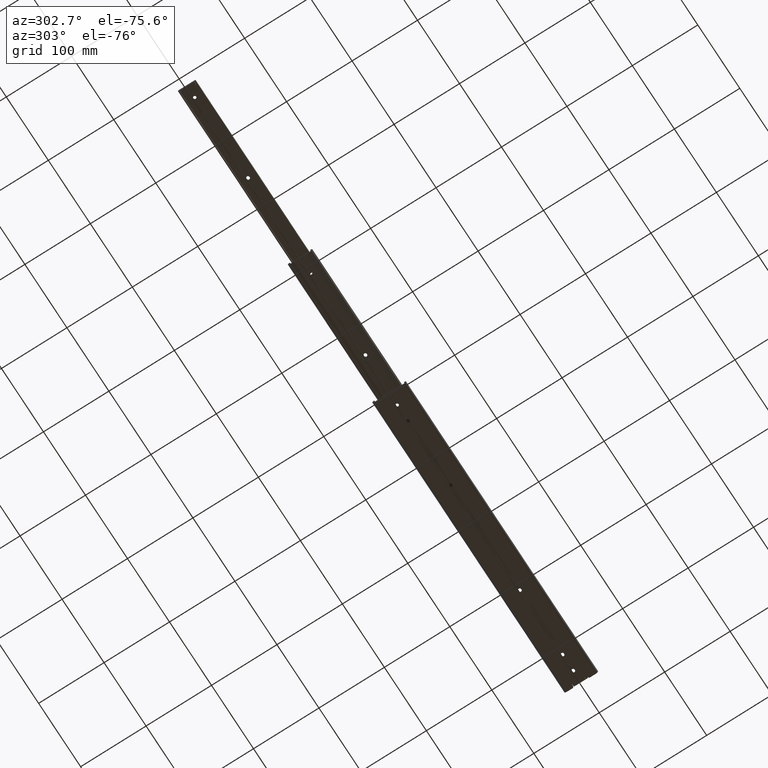
[diagram: clean part render]
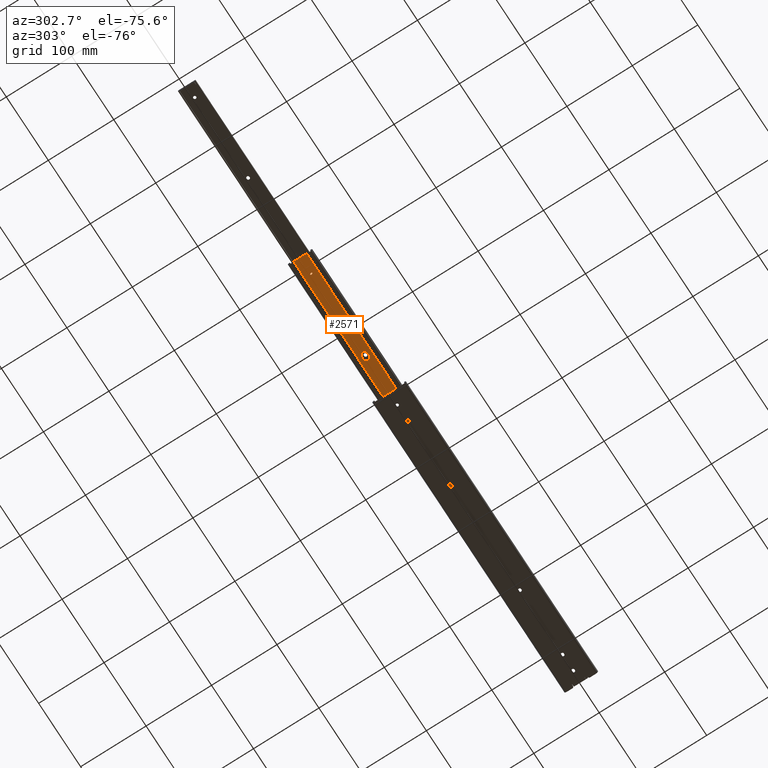
[diagram: same view with one face highlighted and labeled with its STEP entity id]
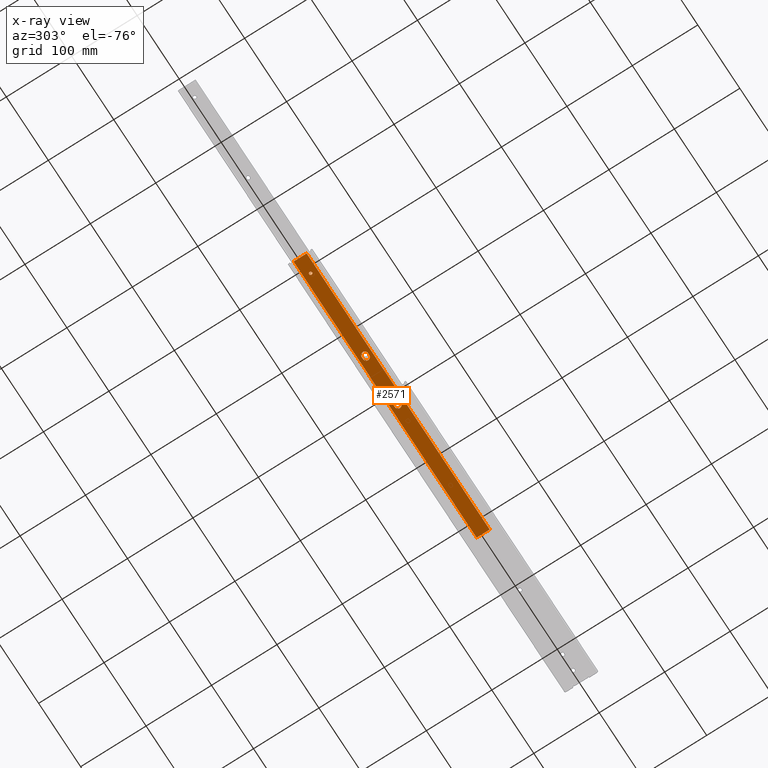
[diagram: x-ray of the same camera — body ghosted, the highlighted face saturated]
A machine part, auxiliary view. The second image highlights one B-rep face of the part: STEP entity #2571.
The next image is the same camera in x-ray: the body ghosted, the highlighted face saturated — about 0% of this face is hidden behind the body in this view.
In plain terms, the highlighted planar face has unit normal (0, -0, -1).
Its self-contained STEP definition (entity closure, byte-faithful):
#19 = CARTESIAN_POINT ( 'NONE',  ( 448.6999999999999900, 10.00000000000000000, 0.0000000000000000000 ) ) ;
#45 = CARTESIAN_POINT ( 'NONE',  ( 448.6999999999999900, 4.749999999999988500, 9.486769009248185500E-016 ) ) ;
#49 = DIRECTION ( 'NONE',  ( 0.0000000000000000000, 1.000000000000000000, -1.807003620809173900E-016 ) ) ;
#81 = CARTESIAN_POINT ( 'NONE',  ( 232.8000000000000100, 2.178172353977205900E-014, 1.734723475976807100E-015 ) ) ;
#137 = AXIS2_PLACEMENT_3D ( 'NONE', #7273, #3620, #49 ) ;
#162 = EDGE_CURVE ( 'NONE', #297, #1752, #5629, .T. ) ;
#179 = DIRECTION ( 'NONE',  ( 0.0000000000000000000, 1.000000000000000000, -1.807003620809174100E-016 ) ) ;
#209 = EDGE_CURVE ( 'NONE', #6526, #2251, #3641, .T. ) ;
#249 = VECTOR ( 'NONE', #2149, 1000.000000000000000 ) ;
#274 = CIRCLE ( 'NONE', #4279, 4.750000000000000000 ) ;
#297 = VERTEX_POINT ( 'NONE', #4852 ) ;
#322 = EDGE_CURVE ( 'NONE', #1752, #1324, #274, .T. ) ;
#336 = LINE ( 'NONE', #1783, #2131 ) ;
#444 = CIRCLE ( 'NONE', #4536, 4.750000000000000000 ) ;
#464 = VECTOR ( 'NONE', #2605, 1000.000000000000000 ) ;
#479 = CARTESIAN_POINT ( 'NONE',  ( 448.6999999999999900, -4.750000000000000900, 2.665330340693532000E-015 ) ) ;
#481 = EDGE_CURVE ( 'NONE', #5575, #1917, #5614, .T. ) ;
#555 = EDGE_CURVE ( 'NONE', #1918, #6526, #444, .T. ) ;
#582 = CARTESIAN_POINT ( 'NONE',  ( 157.2000000000000200, 1.788957920960457400E-014, 1.734723475976807100E-015 ) ) ;
#698 = VERTEX_POINT ( 'NONE', #3058 ) ;
#1037 = CARTESIAN_POINT ( 'NONE',  ( 157.2000000000000200, 1.788957920960457400E-014, 1.734723475976807100E-015 ) ) ;
#1069 = AXIS2_PLACEMENT_3D ( 'NONE', #81, #7351, #4265 ) ;
#1188 = DIRECTION ( 'NONE',  ( 0.0000000000000000000, 1.000000000000000000, -1.807003620809174400E-016 ) ) ;
#1195 = CARTESIAN_POINT ( 'NONE',  ( 229.5999999999999400, 2.158578005190847300E-014, 1.734723475976807100E-015 ) ) ;
#1207 = VECTOR ( 'NONE', #1226, 1000.000000000000000 ) ;
#1226 = DIRECTION ( 'NONE',  ( -1.000000000000000000, -0.0000000000000000000, -0.0000000000000000000 ) ) ;
#1237 = VERTEX_POINT ( 'NONE', #1586 ) ;
#1306 = DIRECTION ( 'NONE',  ( 0.0000000000000000000, -1.807003620809174100E-016, -1.000000000000000000 ) ) ;
#1324 = VERTEX_POINT ( 'NONE', #5137 ) ;
#1327 = CARTESIAN_POINT ( 'NONE',  ( 25.00000000000000000, -5.307011471570957900E-016, 1.734723475976807100E-015 ) ) ;
#1404 = ORIENTED_EDGE ( 'NONE', *, *, #322, .F. ) ;
#1409 = CARTESIAN_POINT ( 'NONE',  ( 157.2000000000000700, -4.750000000000000900, 2.665330340693532000E-015 ) ) ;
#1460 = ORIENTED_EDGE ( 'NONE', *, *, #2397, .F. ) ;
#1483 = CIRCLE ( 'NONE', #7360, 4.750000000000000000 ) ;
#1586 = CARTESIAN_POINT ( 'NONE',  ( 22.75000000000000400, -2.551556173489412600E-016, 1.734723475976807100E-015 ) ) ;
#1651 = DIRECTION ( 'NONE',  ( 0.0000000000000000000, 1.000000000000000000, -1.807003620809174400E-016 ) ) ;
#1752 = VERTEX_POINT ( 'NONE', #4035 ) ;
#1783 = CARTESIAN_POINT ( 'NONE',  ( 0.0000000000000000000, 10.00000000000000000, 0.0000000000000000000 ) ) ;
#1802 = DIRECTION ( 'NONE',  ( 0.0000000000000000000, 1.000000000000000000, -1.807003620809174400E-016 ) ) ;
#1827 = EDGE_LOOP ( 'NONE', ( #2158, #5030 ) ) ;
#1851 = AXIS2_PLACEMENT_3D ( 'NONE', #1037, #5238, #1651 ) ;
#1860 = LINE ( 'NONE', #3277, #249 ) ;
#1872 = AXIS2_PLACEMENT_3D ( 'NONE', #1195, #5393, #1802 ) ;
#1917 = VERTEX_POINT ( 'NONE', #3378 ) ;
#1918 = VERTEX_POINT ( 'NONE', #3410 ) ;
#1934 = DIRECTION ( 'NONE',  ( 0.0000000000000000000, 1.000000000000000000, -1.807003620809173900E-016 ) ) ;
#1969 = CARTESIAN_POINT ( 'NONE',  ( 0.0000000000000000000, -10.00000000000000000, 3.614007241618347600E-015 ) ) ;
#1978 = CARTESIAN_POINT ( 'NONE',  ( 435.6999999999999900, 10.00000000000000000, 0.0000000000000000000 ) ) ;
#2008 = VERTEX_POINT ( 'NONE', #6709 ) ;
#2015 = ORIENTED_EDGE ( 'NONE', *, *, #6223, .F. ) ;
#2089 = ORIENTED_EDGE ( 'NONE', *, *, #481, .F. ) ;
#2131 = VECTOR ( 'NONE', #3539, 1000.000000000000000 ) ;
#2139 = CARTESIAN_POINT ( 'NONE',  ( 153.9999999999999700, 4.749999999999999100, 8.673617379884035500E-016 ) ) ;
#2149 = DIRECTION ( 'NONE',  ( -1.000000000000000000, -0.0000000000000000000, -0.0000000000000000000 ) ) ;
#2158 = ORIENTED_EDGE ( 'NONE', *, *, #5417, .F. ) ;
#2176 = ORIENTED_EDGE ( 'NONE', *, *, #6204, .F. ) ;
#2251 = VERTEX_POINT ( 'NONE', #3413 ) ;
#2397 = EDGE_CURVE ( 'NONE', #1917, #2576, #336, .T. ) ;
#2402 = CARTESIAN_POINT ( 'NONE',  ( 448.6999999999999900, -4.750000000000011500, 2.665330340693534000E-015 ) ) ;
#2403 = FACE_BOUND ( 'NONE', #5196, .T. ) ;
#2442 = ORIENTED_EDGE ( 'NONE', *, *, #4295, .F. ) ;
#2452 = EDGE_CURVE ( 'NONE', #1237, #698, #4558, .T. ) ;
#2552 = CARTESIAN_POINT ( 'NONE',  ( 448.6999999999999900, 10.00000000000000000, 0.0000000000000000000 ) ) ;
#2571 = ADVANCED_FACE ( 'NONE', ( #5406, #5596, #2403, #6850 ), #5553, .T. ) ;
#2576 = VERTEX_POINT ( 'NONE', #1969 ) ;
#2605 = DIRECTION ( 'NONE',  ( 1.000000000000000000, 0.0000000000000000000, 0.0000000000000000000 ) ) ;
#2610 = VERTEX_POINT ( 'NONE', #1409 ) ;
#2648 = CARTESIAN_POINT ( 'NONE',  ( 435.6999999999999900, -9.999999999999996400, 3.614007241618347600E-015 ) ) ;
#2668 = ORIENTED_EDGE ( 'NONE', *, *, #2897, .F. ) ;
#2685 = CARTESIAN_POINT ( 'NONE',  ( 161.9500000000000200, 1.788957920960457400E-014, 1.734723475976807100E-015 ) ) ;
#2719 = DIRECTION ( 'NONE',  ( 0.0000000000000000000, -1.807003620809174100E-016, -1.000000000000000000 ) ) ;
#2897 = EDGE_CURVE ( 'NONE', #3396, #2610, #7029, .T. ) ;
#3058 = CARTESIAN_POINT ( 'NONE',  ( 27.25000000000000000, -5.307011471570956900E-016, 1.734723475976807100E-015 ) ) ;
#3111 = ORIENTED_EDGE ( 'NONE', *, *, #3547, .F. ) ;
#3277 = CARTESIAN_POINT ( 'NONE',  ( 448.6999999999999900, -10.00000000000000000, 3.614007241618347600E-015 ) ) ;
#3342 = CARTESIAN_POINT ( 'NONE',  ( 229.5999999999999400, -4.750000000000011500, 2.602085213965210600E-015 ) ) ;
#3355 = ORIENTED_EDGE ( 'NONE', *, *, #3946, .T. ) ;
#3378 = CARTESIAN_POINT ( 'NONE',  ( 0.0000000000000000000, 10.00000000000000000, 0.0000000000000000000 ) ) ;
#3396 = VERTEX_POINT ( 'NONE', #2685 ) ;
#3410 = CARTESIAN_POINT ( 'NONE',  ( 153.9999999999999700, -4.750000000000000900, 2.602085213965210600E-015 ) ) ;
#3413 = CARTESIAN_POINT ( 'NONE',  ( 157.2000000000000200, 4.749999999999999100, 8.673617379884035500E-016 ) ) ;
#3457 = VERTEX_POINT ( 'NONE', #3342 ) ;
#3477 = DIRECTION ( 'NONE',  ( -1.000000000000000000, 0.0000000000000000000, 0.0000000000000000000 ) ) ;
#3539 = DIRECTION ( 'NONE',  ( 0.0000000000000000000, -1.000000000000000000, 1.807003620809173900E-016 ) ) ;
#3547 = EDGE_CURVE ( 'NONE', #2251, #3396, #1483, .T. ) ;
#3594 = LINE ( 'NONE', #479, #6644 ) ;
#3613 = DIRECTION ( 'NONE',  ( 1.000000000000000000, 0.0000000000000000000, 0.0000000000000000000 ) ) ;
#3620 = DIRECTION ( 'NONE',  ( 0.0000000000000000000, -1.807003620809174100E-016, -1.000000000000000000 ) ) ;
#3641 = LINE ( 'NONE', #4881, #464 ) ;
#3749 = DIRECTION ( 'NONE',  ( 0.0000000000000000000, -1.807003620809174100E-016, -1.000000000000000000 ) ) ;
#3853 = ORIENTED_EDGE ( 'NONE', *, *, #555, .F. ) ;
#3946 = EDGE_CURVE ( 'NONE', #7025, #2576, #1860, .T. ) ;
#3977 = VECTOR ( 'NONE', #5563, 1000.000000000000000 ) ;
#4035 = CARTESIAN_POINT ( 'NONE',  ( 237.5500000000000100, 2.178172353977205900E-014, 1.734723475976807100E-015 ) ) ;
#4092 = AXIS2_PLACEMENT_3D ( 'NONE', #1327, #5518, #1934 ) ;
#4265 = DIRECTION ( 'NONE',  ( 0.0000000000000000000, 1.000000000000000000, -1.807003620809174400E-016 ) ) ;
#4279 = AXIS2_PLACEMENT_3D ( 'NONE', #6359, #2719, #6978 ) ;
#4295 = EDGE_CURVE ( 'NONE', #7025, #5575, #7236, .T. ) ;
#4536 = AXIS2_PLACEMENT_3D ( 'NONE', #4900, #1306, #5501 ) ;
#4558 = CIRCLE ( 'NONE', #137, 2.249999999999999100 ) ;
#4610 = ORIENTED_EDGE ( 'NONE', *, *, #5227, .F. ) ;
#4773 = DIRECTION ( 'NONE',  ( 0.0000000000000000000, -1.807003620809174100E-016, -1.000000000000000000 ) ) ;
#4852 = CARTESIAN_POINT ( 'NONE',  ( 232.8000000000000400, 4.749999999999988500, 8.673617379884035500E-016 ) ) ;
#4881 = CARTESIAN_POINT ( 'NONE',  ( 448.6999999999999900, 4.749999999999999100, 9.486769009248165800E-016 ) ) ;
#4900 = CARTESIAN_POINT ( 'NONE',  ( 153.9999999999999700, 1.769363572174099100E-014, 1.734723475976807100E-015 ) ) ;
#5030 = ORIENTED_EDGE ( 'NONE', *, *, #2452, .F. ) ;
#5137 = CARTESIAN_POINT ( 'NONE',  ( 232.8000000000000400, -4.750000000000011500, 2.665330340693534000E-015 ) ) ;
#5196 = EDGE_LOOP ( 'NONE', ( #6340, #2176, #1404, #6239, #2015 ) ) ;
#5227 = EDGE_CURVE ( 'NONE', #2610, #1918, #3594, .T. ) ;
#5238 = DIRECTION ( 'NONE',  ( 0.0000000000000000000, -1.807003620809174100E-016, -1.000000000000000000 ) ) ;
#5393 = DIRECTION ( 'NONE',  ( 0.0000000000000000000, -1.807003620809174100E-016, -1.000000000000000000 ) ) ;
#5406 = FACE_BOUND ( 'NONE', #1827, .T. ) ;
#5417 = EDGE_CURVE ( 'NONE', #698, #1237, #7788, .T. ) ;
#5501 = DIRECTION ( 'NONE',  ( 0.0000000000000000000, 1.000000000000000000, -1.807003620809174400E-016 ) ) ;
#5518 = DIRECTION ( 'NONE',  ( 0.0000000000000000000, -1.807003620809174100E-016, -1.000000000000000000 ) ) ;
#5553 = PLANE ( 'NONE',  #6997 ) ;
#5563 = DIRECTION ( 'NONE',  ( 0.0000000000000000000, 1.000000000000000000, -1.807003620809174100E-016 ) ) ;
#5575 = VERTEX_POINT ( 'NONE', #6607 ) ;
#5596 = FACE_BOUND ( 'NONE', #5840, .T. ) ;
#5614 = LINE ( 'NONE', #19, #1207 ) ;
#5617 = CIRCLE ( 'NONE', #1872, 4.750000000000000000 ) ;
#5629 = CIRCLE ( 'NONE', #1069, 4.750000000000000000 ) ;
#5651 = VECTOR ( 'NONE', #3613, 1000.000000000000000 ) ;
#5655 = ORIENTED_EDGE ( 'NONE', *, *, #209, .F. ) ;
#5840 = EDGE_LOOP ( 'NONE', ( #3853, #4610, #2668, #3111, #5655 ) ) ;
#5850 = VECTOR ( 'NONE', #6030, 1000.000000000000000 ) ;
#6030 = DIRECTION ( 'NONE',  ( -1.000000000000000000, 0.0000000000000000000, 0.0000000000000000000 ) ) ;
#6204 = EDGE_CURVE ( 'NONE', #1324, #3457, #7490, .T. ) ;
#6223 = EDGE_CURVE ( 'NONE', #2008, #297, #7293, .T. ) ;
#6239 = ORIENTED_EDGE ( 'NONE', *, *, #162, .F. ) ;
#6340 = ORIENTED_EDGE ( 'NONE', *, *, #7337, .F. ) ;
#6359 = CARTESIAN_POINT ( 'NONE',  ( 232.8000000000000100, 2.178172353977205900E-014, 1.734723475976807100E-015 ) ) ;
#6526 = VERTEX_POINT ( 'NONE', #2139 ) ;
#6607 = CARTESIAN_POINT ( 'NONE',  ( 435.6999999999999900, 10.00000000000000000, -2.168404344971008900E-016 ) ) ;
#6644 = VECTOR ( 'NONE', #3477, 1000.000000000000000 ) ;
#6709 = CARTESIAN_POINT ( 'NONE',  ( 229.5999999999999400, 4.749999999999988500, 8.673617379884035500E-016 ) ) ;
#6850 = FACE_OUTER_BOUND ( 'NONE', #7768, .T. ) ;
#6978 = DIRECTION ( 'NONE',  ( 0.0000000000000000000, 1.000000000000000000, -1.807003620809174400E-016 ) ) ;
#6997 = AXIS2_PLACEMENT_3D ( 'NONE', #2552, #3749, #179 ) ;
#7025 = VERTEX_POINT ( 'NONE', #2648 ) ;
#7029 = CIRCLE ( 'NONE', #1851, 4.750000000000000000 ) ;
#7236 = LINE ( 'NONE', #1978, #3977 ) ;
#7273 = CARTESIAN_POINT ( 'NONE',  ( 25.00000000000000000, -5.307011471570957900E-016, 1.734723475976807100E-015 ) ) ;
#7293 = LINE ( 'NONE', #45, #5651 ) ;
#7337 = EDGE_CURVE ( 'NONE', #3457, #2008, #5617, .T. ) ;
#7351 = DIRECTION ( 'NONE',  ( 0.0000000000000000000, -1.807003620809174100E-016, -1.000000000000000000 ) ) ;
#7360 = AXIS2_PLACEMENT_3D ( 'NONE', #582, #4773, #1188 ) ;
#7490 = LINE ( 'NONE', #2402, #5850 ) ;
#7768 = EDGE_LOOP ( 'NONE', ( #2442, #3355, #1460, #2089 ) ) ;
#7788 = CIRCLE ( 'NONE', #4092, 2.249999999999999100 ) ;